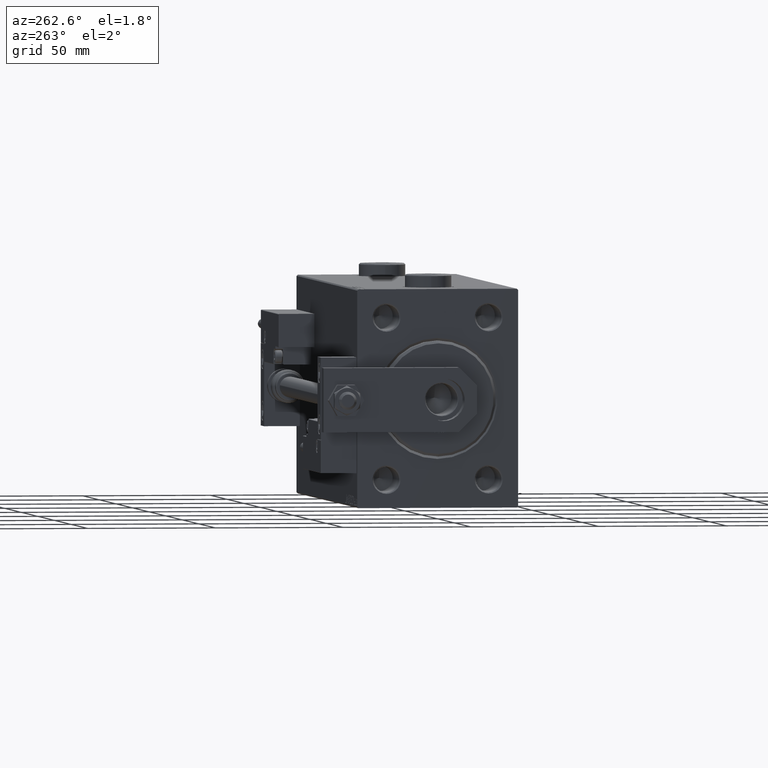
[diagram: clean part render]
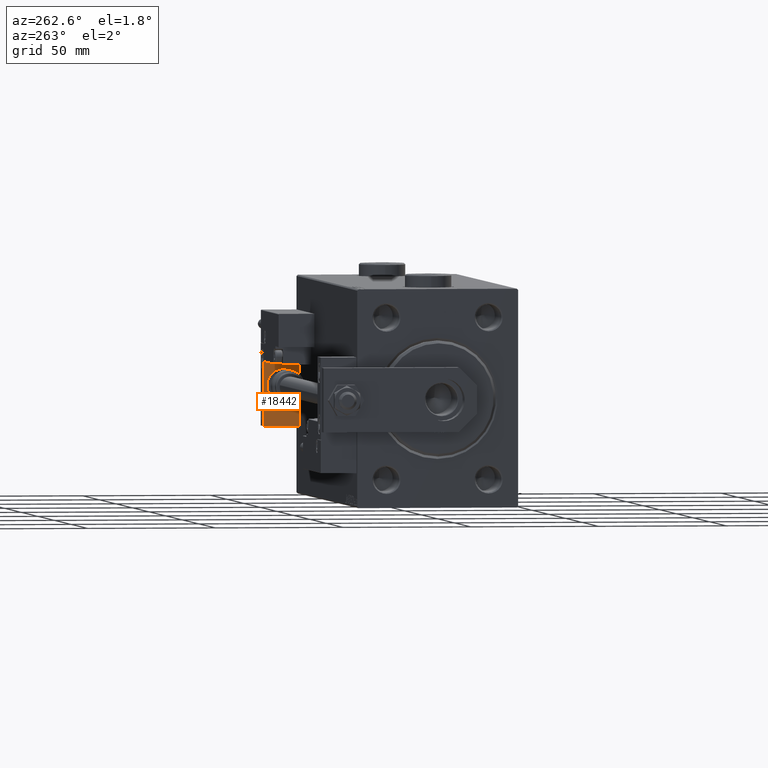
[diagram: same view with one face highlighted and labeled with its STEP entity id]
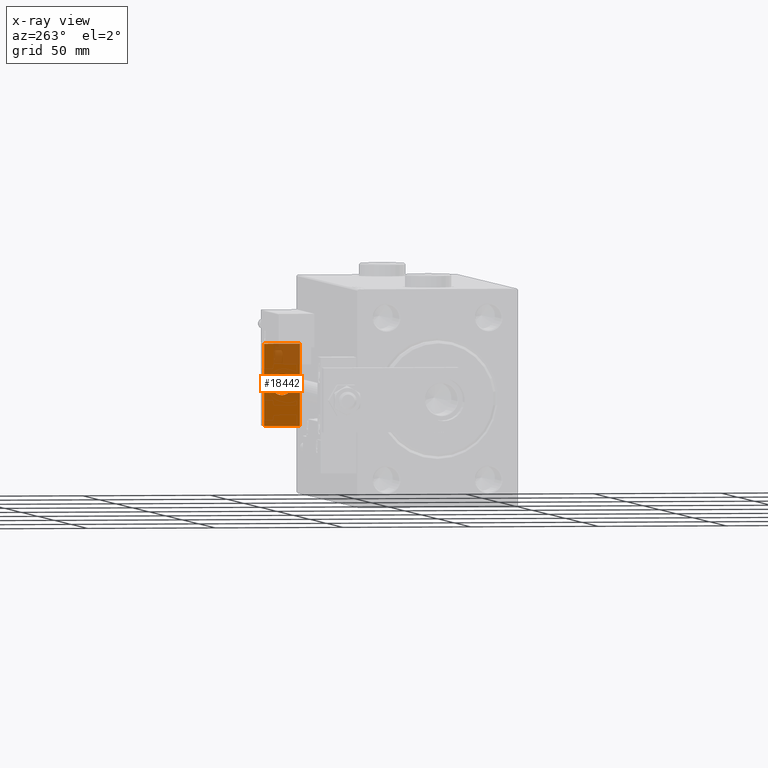
[diagram: x-ray of the same camera — body ghosted, the highlighted face saturated]
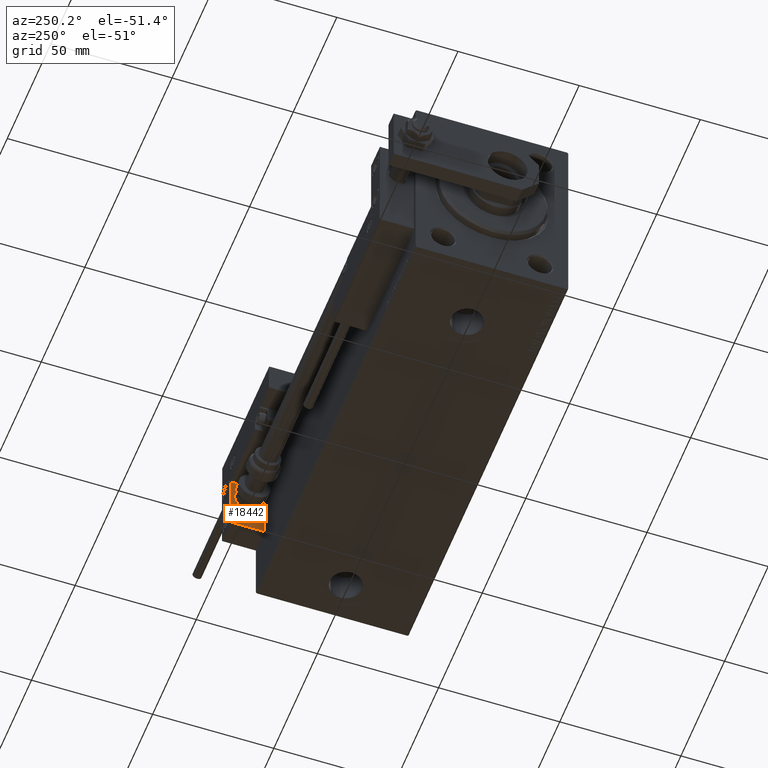
[diagram: same view with one face highlighted and labeled with its STEP entity id]
A machine part, auxiliary view. The second image highlights one B-rep face of the part: STEP entity #18442.
The next image is the same camera in x-ray: the body ghosted, the highlighted face saturated — about 29% of this face is hidden behind the body in this view.
A second angle (auxiliary view) of the same face is appended — the face is thin or edge-on in the first view.
In plain terms, the highlighted planar face has unit normal (-1, 0, 0).
Its self-contained STEP definition (entity closure, byte-faithful):
#755 = VECTOR ( 'NONE', #37735, 1000.000000000000000 ) ;
#1146 = DIRECTION ( 'NONE',  ( -1.000000000000000000, 0.000000000000000000, -0.000000000000000000 ) ) ;
#2179 = VECTOR ( 'NONE', #11246, 1000.000000000000000 ) ;
#2506 = DIRECTION ( 'NONE',  ( 0.000000000000000000, 0.000000000000000000, 1.000000000000000000 ) ) ;
#4016 = VERTEX_POINT ( 'NONE', #13098 ) ;
#4838 = ORIENTED_EDGE ( 'NONE', *, *, #51457, .F. ) ;
#4876 = EDGE_LOOP ( 'NONE', ( #39348, #22174, #6895, #12328 ) ) ;
#5124 = PLANE ( 'NONE',  #47830 ) ;
#5854 = CARTESIAN_POINT ( 'NONE',  ( 0.000000000000000000, 7.000000000000000000, 15.99999999999999289 ) ) ;
#6895 = ORIENTED_EDGE ( 'NONE', *, *, #35644, .T. ) ;
#9068 = DIRECTION ( 'NONE',  ( 0.000000000000000000, -1.000000000000000000, 0.000000000000000000 ) ) ;
#9325 = LINE ( 'NONE', #5854, #755 ) ;
#9446 = DIRECTION ( 'NONE',  ( -1.000000000000000000, -0.000000000000000000, -0.000000000000000000 ) ) ;
#10624 = VERTEX_POINT ( 'NONE', #52505 ) ;
#11246 = DIRECTION ( 'NONE',  ( 0.000000000000000000, 0.000000000000000000, -1.000000000000000000 ) ) ;
#11448 = VERTEX_POINT ( 'NONE', #48685 ) ;
#11618 = ORIENTED_EDGE ( 'NONE', *, *, #13346, .F. ) ;
#12328 = ORIENTED_EDGE ( 'NONE', *, *, #17263, .T. ) ;
#13098 = CARTESIAN_POINT ( 'NONE',  ( 0.000000000000000000, 0.000000000000000000, 4.000000000000000000 ) ) ;
#13346 = EDGE_CURVE ( 'NONE', #45913, #4016, #40826, .T. ) ;
#16807 = DIRECTION ( 'NONE',  ( 0.000000000000000000, 0.000000000000000000, 1.000000000000000000 ) ) ;
#17263 = EDGE_CURVE ( 'NONE', #42671, #35963, #34913, .T. ) ;
#17367 = DIRECTION ( 'NONE',  ( -0.000000000000000000, 0.000000000000000000, 1.000000000000000000 ) ) ;
#18442 = ADVANCED_FACE ( 'NONE', ( #24795, #41512 ), #5124, .T. ) ;
#19753 = VECTOR ( 'NONE', #47680, 1000.000000000000000 ) ;
#20002 = CARTESIAN_POINT ( 'NONE',  ( 0.000000000000000000, 0.000000000000000000, 0.000000000000000000 ) ) ;
#21327 = CARTESIAN_POINT ( 'NONE',  ( 0.000000000000000000, 0.000000000000000000, 0.000000000000000000 ) ) ;
#21334 = AXIS2_PLACEMENT_3D ( 'NONE', #20002, #36451, #16807 ) ;
#22174 = ORIENTED_EDGE ( 'NONE', *, *, #33261, .F. ) ;
#23979 = CARTESIAN_POINT ( 'NONE',  ( 0.000000000000000000, -7.000000000000000000, 15.99999999999999289 ) ) ;
#24795 = FACE_BOUND ( 'NONE', #32638, .T. ) ;
#27439 = EDGE_CURVE ( 'NONE', #10624, #35963, #35924, .T. ) ;
#28455 = LINE ( 'NONE', #36954, #36285 ) ;
#32638 = EDGE_LOOP ( 'NONE', ( #4838, #11618 ) ) ;
#33261 = EDGE_CURVE ( 'NONE', #11448, #10624, #28455, .T. ) ;
#33325 = AXIS2_PLACEMENT_3D ( 'NONE', #45844, #9446, #2506 ) ;
#34913 = LINE ( 'NONE', #52188, #19753 ) ;
#35644 = EDGE_CURVE ( 'NONE', #11448, #42671, #9325, .T. ) ;
#35924 = LINE ( 'NONE', #23979, #2179 ) ;
#35963 = VERTEX_POINT ( 'NONE', #47703 ) ;
#36285 = VECTOR ( 'NONE', #9068, 1000.000000000000000 ) ;
#36451 = DIRECTION ( 'NONE',  ( -1.000000000000000000, -0.000000000000000000, -0.000000000000000000 ) ) ;
#36954 = CARTESIAN_POINT ( 'NONE',  ( 0.000000000000000000, 7.000000000000000000, 15.99999999999999289 ) ) ;
#37735 = DIRECTION ( 'NONE',  ( 0.000000000000000000, 0.000000000000000000, -1.000000000000000000 ) ) ;
#39348 = ORIENTED_EDGE ( 'NONE', *, *, #27439, .F. ) ;
#40826 = CIRCLE ( 'NONE', #21334, 4.000000000000000000 ) ;
#41512 = FACE_OUTER_BOUND ( 'NONE', #4876, .T. ) ;
#42661 = CIRCLE ( 'NONE', #33325, 4.000000000000000000 ) ;
#42671 = VERTEX_POINT ( 'NONE', #51923 ) ;
#45844 = CARTESIAN_POINT ( 'NONE',  ( 0.000000000000000000, 0.000000000000000000, 0.000000000000000000 ) ) ;
#45913 = VERTEX_POINT ( 'NONE', #48344 ) ;
#47680 = DIRECTION ( 'NONE',  ( 0.000000000000000000, -1.000000000000000000, 0.000000000000000000 ) ) ;
#47703 = CARTESIAN_POINT ( 'NONE',  ( 0.000000000000000000, -7.000000000000000000, -16.00000000000000711 ) ) ;
#47830 = AXIS2_PLACEMENT_3D ( 'NONE', #21327, #1146, #17367 ) ;
#48344 = CARTESIAN_POINT ( 'NONE',  ( 0.000000000000000000, 4.898587196589412829E-16, -4.000000000000000000 ) ) ;
#48685 = CARTESIAN_POINT ( 'NONE',  ( 0.000000000000000000, 7.000000000000000000, 15.99999999999999289 ) ) ;
#51457 = EDGE_CURVE ( 'NONE', #4016, #45913, #42661, .T. ) ;
#51923 = CARTESIAN_POINT ( 'NONE',  ( 0.000000000000000000, 7.000000000000000000, -16.00000000000000711 ) ) ;
#52188 = CARTESIAN_POINT ( 'NONE',  ( 0.000000000000000000, 7.000000000000000000, -16.00000000000000711 ) ) ;
#52505 = CARTESIAN_POINT ( 'NONE',  ( 0.000000000000000000, -7.000000000000000000, 15.99999999999999289 ) ) ;